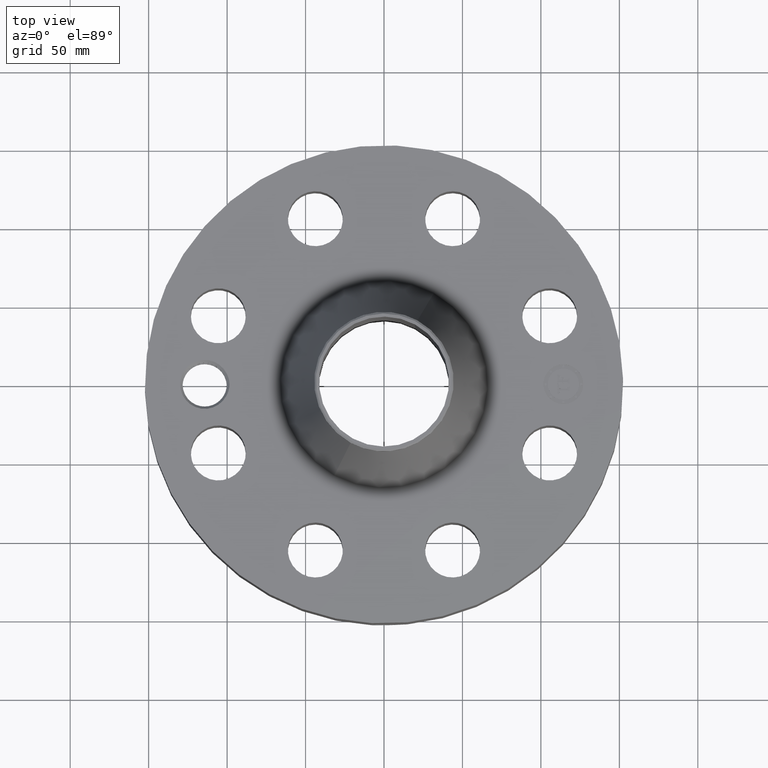
[diagram: clean part render]
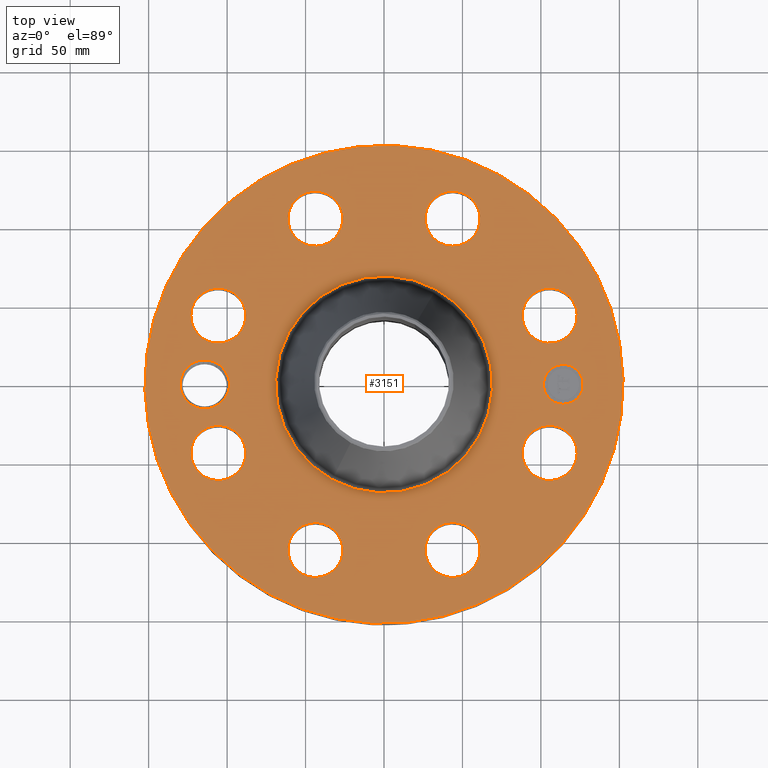
[diagram: same view with one face highlighted and labeled with its STEP entity id]
A machine part, top view. The second image highlights one B-rep face of the part: STEP entity #3151.
In plain terms, the highlighted planar face has unit normal (0, 0, -1).
Its self-contained STEP definition (entity closure, byte-faithful):
#2190=AXIS2_PLACEMENT_3D('Circle Axis2P3D',#2188,#2189,$) ;
#2216=AXIS2_PLACEMENT_3D('Circle Axis2P3D',#2214,#2215,$) ;
#2914=AXIS2_PLACEMENT_3D('Plane Axis2P3D',#2911,#2912,#2913) ;
#2918=AXIS2_PLACEMENT_3D('Circle Axis2P3D',#2916,#2917,$) ;
#2927=AXIS2_PLACEMENT_3D('Circle Axis2P3D',#2925,#2926,$) ;
#2961=AXIS2_PLACEMENT_3D('Circle Axis2P3D',#2959,#2960,$) ;
#2968=AXIS2_PLACEMENT_3D('Circle Axis2P3D',#2966,#2967,$) ;
#2975=AXIS2_PLACEMENT_3D('Circle Axis2P3D',#2973,#2974,$) ;
#2987=AXIS2_PLACEMENT_3D('Circle Axis2P3D',#2985,#2986,$) ;
#2996=AXIS2_PLACEMENT_3D('Circle Axis2P3D',#2994,#2995,$) ;
#3009=AXIS2_PLACEMENT_3D('Circle Axis2P3D',#3007,#3008,$) ;
#3018=AXIS2_PLACEMENT_3D('Circle Axis2P3D',#3016,#3017,$) ;
#3027=AXIS2_PLACEMENT_3D('Circle Axis2P3D',#3025,#3026,$) ;
#3036=AXIS2_PLACEMENT_3D('Circle Axis2P3D',#3034,#3035,$) ;
#3045=AXIS2_PLACEMENT_3D('Circle Axis2P3D',#3043,#3044,$) ;
#3054=AXIS2_PLACEMENT_3D('Circle Axis2P3D',#3052,#3053,$) ;
#3063=AXIS2_PLACEMENT_3D('Circle Axis2P3D',#3061,#3062,$) ;
#3072=AXIS2_PLACEMENT_3D('Circle Axis2P3D',#3070,#3071,$) ;
#3081=AXIS2_PLACEMENT_3D('Circle Axis2P3D',#3079,#3080,$) ;
#3090=AXIS2_PLACEMENT_3D('Circle Axis2P3D',#3088,#3089,$) ;
#3099=AXIS2_PLACEMENT_3D('Circle Axis2P3D',#3097,#3098,$) ;
#3108=AXIS2_PLACEMENT_3D('Circle Axis2P3D',#3106,#3107,$) ;
#3117=AXIS2_PLACEMENT_3D('Circle Axis2P3D',#3115,#3116,$) ;
#3126=AXIS2_PLACEMENT_3D('Circle Axis2P3D',#3124,#3125,$) ;
#3135=AXIS2_PLACEMENT_3D('Circle Axis2P3D',#3133,#3134,$) ;
#3144=AXIS2_PLACEMENT_3D('Circle Axis2P3D',#3142,#3143,$) ;
#2188=CARTESIAN_POINT('Axis2P3D Location',(0.,0.,2.99500000001)) ;
#2192=CARTESIAN_POINT('Vertex',(-1.30409489055,-2.38712968511,2.99500000001)) ;
#2194=CARTESIAN_POINT('Vertex',(1.30409489055,2.38712968511,2.99500000001)) ;
#2214=CARTESIAN_POINT('Axis2P3D Location',(0.,0.,2.99500000001)) ;
#2911=CARTESIAN_POINT('Axis2P3D Location',(0.,6.00000000002,2.99500000001)) ;
#2916=CARTESIAN_POINT('Axis2P3D Location',(0.,0.,2.99500000001)) ;
#2920=CARTESIAN_POINT('Vertex',(2.87655323164,5.26549537136,2.99500000001)) ;
#2922=CARTESIAN_POINT('Vertex',(-2.87655323164,-5.26549537136,2.99500000001)) ;
#2925=CARTESIAN_POINT('Axis2P3D Location',(0.,0.,2.99500000001)) ;
#2935=CARTESIAN_POINT('Control Point',(-3.87500000002,-1.1189649382E-015,2.99500000001)) ;
#2936=CARTESIAN_POINT('Control Point',(-3.87705142233,0.0564511992898,2.99500000001)) ;
#2937=CARTESIAN_POINT('Control Point',(-3.88548073755,0.112561680425,2.99500000001)) ;
#2938=CARTESIAN_POINT('Control Point',(-3.90023974767,0.167363712715,2.99500000001)) ;
#2939=CARTESIAN_POINT('Control Point',(-3.92105024981,0.219899046361,2.99500000001)) ;
#2940=CARTESIAN_POINT('Control Point',(-3.94744118531,0.269322940528,2.99500000001)) ;
#2941=CARTESIAN_POINT('Vertex',(-3.87500000002,-2.23792987641E-015,2.99500000001)) ;
#2943=CARTESIAN_POINT('Vertex',(-3.94744118531,0.269322940528,2.99500000001)) ;
#2947=CARTESIAN_POINT('Control Point',(-3.87500000002,0.,2.99500000001)) ;
#2948=CARTESIAN_POINT('Control Point',(-3.87686305278,-0.0512676314886,2.99500000001)) ;
#2949=CARTESIAN_POINT('Control Point',(-3.88398649713,-0.102254244847,2.99500000001)) ;
#2950=CARTESIAN_POINT('Control Point',(-3.89632551094,-0.152216993151,2.99500000001)) ;
#2951=CARTESIAN_POINT('Control Point',(-3.91547869889,-0.205418612382,2.99500000001)) ;
#2952=CARTESIAN_POINT('Control Point',(-3.94033933886,-0.255718032549,2.99500000001)) ;
#2953=CARTESIAN_POINT('Control Point',(-3.94271616362,-0.260400364357,2.99500000001)) ;
#2954=CARTESIAN_POINT('Control Point',(-3.94514225931,-0.265055859827,2.99500000001)) ;
#2955=CARTESIAN_POINT('Control Point',(-3.94761723184,-0.269683828635,2.99500000001)) ;
#2956=CARTESIAN_POINT('Vertex',(-3.94761723184,-0.269683828635,2.99500000001)) ;
#2959=CARTESIAN_POINT('Axis2P3D Location',(-4.50000000002,1.1189649382E-015,2.99500000001)) ;
#2963=CARTESIAN_POINT('Vertex',(-3.96054999922,-0.294702878581,2.99500000001)) ;
#2966=CARTESIAN_POINT('Axis2P3D Location',(-4.50000000002,1.1189649382E-015,2.99500000001)) ;
#2970=CARTESIAN_POINT('Vertex',(-5.03945000081,0.294702878581,2.99500000001)) ;
#2973=CARTESIAN_POINT('Axis2P3D Location',(-4.50000000002,1.1189649382E-015,2.99500000001)) ;
#2985=CARTESIAN_POINT('Axis2P3D Location',(4.15745789632,-1.72207544565,2.99500000001)) ;
#2989=CARTESIAN_POINT('Vertex',(3.55192592861,-1.39127182401,2.99500000001)) ;
#2991=CARTESIAN_POINT('Vertex',(4.76298986402,-2.05287906729,2.99500000001)) ;
#2994=CARTESIAN_POINT('Axis2P3D Location',(4.15745789632,-1.72207544565,2.99500000001)) ;
#3007=CARTESIAN_POINT('Axis2P3D Location',(1.72207544565,-4.15745789632,2.99500000001)) ;
#3011=CARTESIAN_POINT('Vertex',(1.91633772214,-4.81954714101,2.99500000001)) ;
#3013=CARTESIAN_POINT('Vertex',(1.52781316916,-3.49536865163,2.99500000001)) ;
#3016=CARTESIAN_POINT('Axis2P3D Location',(1.72207544565,-4.15745789632,2.99500000001)) ;
#3025=CARTESIAN_POINT('Axis2P3D Location',(-1.72207544565,-4.15745789632,2.99500000001)) ;
#3029=CARTESIAN_POINT('Vertex',(-2.05287906729,-4.76298986402,2.99500000001)) ;
#3031=CARTESIAN_POINT('Vertex',(-1.39127182401,-3.55192592861,2.99500000001)) ;
#3034=CARTESIAN_POINT('Axis2P3D Location',(-1.72207544565,-4.15745789632,2.99500000001)) ;
#3043=CARTESIAN_POINT('Axis2P3D Location',(-4.15745789632,-1.72207544565,2.99500000001)) ;
#3047=CARTESIAN_POINT('Vertex',(-4.81954714101,-1.91633772214,2.99500000001)) ;
#3049=CARTESIAN_POINT('Vertex',(-3.49536865163,-1.52781316916,2.99500000001)) ;
#3052=CARTESIAN_POINT('Axis2P3D Location',(-4.15745789632,-1.72207544565,2.99500000001)) ;
#3061=CARTESIAN_POINT('Axis2P3D Location',(-4.15745789632,1.72207544565,2.99500000001)) ;
#3065=CARTESIAN_POINT('Vertex',(-4.76298986402,2.05287906729,2.99500000001)) ;
#3067=CARTESIAN_POINT('Vertex',(-3.55192592861,1.39127182401,2.99500000001)) ;
#3070=CARTESIAN_POINT('Axis2P3D Location',(-4.15745789632,1.72207544565,2.99500000001)) ;
#3079=CARTESIAN_POINT('Axis2P3D Location',(-1.72207544565,4.15745789632,2.99500000001)) ;
#3083=CARTESIAN_POINT('Vertex',(-1.91633772214,4.81954714101,2.99500000001)) ;
#3085=CARTESIAN_POINT('Vertex',(-1.52781316916,3.49536865163,2.99500000001)) ;
#3088=CARTESIAN_POINT('Axis2P3D Location',(-1.72207544565,4.15745789632,2.99500000001)) ;
#3097=CARTESIAN_POINT('Axis2P3D Location',(1.72207544565,4.15745789632,2.99500000001)) ;
#3101=CARTESIAN_POINT('Vertex',(2.05287906729,4.76298986402,2.99500000001)) ;
#3103=CARTESIAN_POINT('Vertex',(1.39127182401,3.55192592861,2.99500000001)) ;
#3106=CARTESIAN_POINT('Axis2P3D Location',(1.72207544565,4.15745789632,2.99500000001)) ;
#3115=CARTESIAN_POINT('Axis2P3D Location',(4.15745789632,1.72207544565,2.99500000001)) ;
#3119=CARTESIAN_POINT('Vertex',(4.81954714101,1.91633772214,2.99500000001)) ;
#3121=CARTESIAN_POINT('Vertex',(3.49536865163,1.52781316916,2.99500000001)) ;
#3124=CARTESIAN_POINT('Axis2P3D Location',(4.15745789632,1.72207544565,2.99500000001)) ;
#3133=CARTESIAN_POINT('Axis2P3D Location',(4.50000000002,-1.00706844438E-014,2.99500000001)) ;
#3137=CARTESIAN_POINT('Vertex',(4.50000000002,0.499999995002,2.99500000001)) ;
#3139=CARTESIAN_POINT('Vertex',(4.50000000002,-0.499999995002,2.99500000001)) ;
#3142=CARTESIAN_POINT('Axis2P3D Location',(4.50000000002,-1.00706844438E-014,2.99500000001)) ;
#2189=DIRECTION('Axis2P3D Direction',(0.,0.,-0.0393700787402)) ;
#2215=DIRECTION('Axis2P3D Direction',(0.,0.,-0.0393700787402)) ;
#2912=DIRECTION('Axis2P3D Direction',(0.,0.,-0.0393700787402)) ;
#2913=DIRECTION('Axis2P3D XDirection',(0.0393700787402,0.,0.)) ;
#2917=DIRECTION('Axis2P3D Direction',(0.,0.,-0.0393700787402)) ;
#2926=DIRECTION('Axis2P3D Direction',(0.,0.,-0.0393700787402)) ;
#2960=DIRECTION('Axis2P3D Direction',(0.,0.,-0.0393700787402)) ;
#2967=DIRECTION('Axis2P3D Direction',(0.,0.,-0.0393700787402)) ;
#2974=DIRECTION('Axis2P3D Direction',(0.,0.,-0.0393700787402)) ;
#2986=DIRECTION('Axis2P3D Direction',(0.,0.,-0.0393700787402)) ;
#2995=DIRECTION('Axis2P3D Direction',(0.,0.,-0.0393700787402)) ;
#3008=DIRECTION('Axis2P3D Direction',(0.,0.,-0.0393700787402)) ;
#3017=DIRECTION('Axis2P3D Direction',(0.,0.,-0.0393700787402)) ;
#3026=DIRECTION('Axis2P3D Direction',(0.,0.,-0.0393700787402)) ;
#3035=DIRECTION('Axis2P3D Direction',(0.,0.,-0.0393700787402)) ;
#3044=DIRECTION('Axis2P3D Direction',(0.,0.,-0.0393700787402)) ;
#3053=DIRECTION('Axis2P3D Direction',(0.,0.,-0.0393700787402)) ;
#3062=DIRECTION('Axis2P3D Direction',(0.,0.,-0.0393700787402)) ;
#3071=DIRECTION('Axis2P3D Direction',(0.,0.,-0.0393700787402)) ;
#3080=DIRECTION('Axis2P3D Direction',(0.,0.,-0.0393700787402)) ;
#3089=DIRECTION('Axis2P3D Direction',(0.,0.,-0.0393700787402)) ;
#3098=DIRECTION('Axis2P3D Direction',(0.,0.,-0.0393700787402)) ;
#3107=DIRECTION('Axis2P3D Direction',(0.,0.,-0.0393700787402)) ;
#3116=DIRECTION('Axis2P3D Direction',(0.,0.,-0.0393700787402)) ;
#3125=DIRECTION('Axis2P3D Direction',(0.,0.,-0.0393700787402)) ;
#3134=DIRECTION('Axis2P3D Direction',(0.,0.,-0.0393700787402)) ;
#3143=DIRECTION('Axis2P3D Direction',(0.,0.,-0.0393700787402)) ;
#2931=ORIENTED_EDGE('',*,*,#2924,.F.) ;
#2932=ORIENTED_EDGE('',*,*,#2929,.F.) ;
#2979=ORIENTED_EDGE('',*,*,#2945,.F.) ;
#2980=ORIENTED_EDGE('',*,*,#2958,.T.) ;
#2981=ORIENTED_EDGE('',*,*,#2965,.T.) ;
#2982=ORIENTED_EDGE('',*,*,#2972,.T.) ;
#2983=ORIENTED_EDGE('',*,*,#2977,.T.) ;
#3000=ORIENTED_EDGE('',*,*,#2993,.T.) ;
#3001=ORIENTED_EDGE('',*,*,#2998,.T.) ;
#3004=ORIENTED_EDGE('',*,*,#2196,.T.) ;
#3005=ORIENTED_EDGE('',*,*,#2218,.T.) ;
#3022=ORIENTED_EDGE('',*,*,#3015,.T.) ;
#3023=ORIENTED_EDGE('',*,*,#3020,.T.) ;
#3040=ORIENTED_EDGE('',*,*,#3033,.T.) ;
#3041=ORIENTED_EDGE('',*,*,#3038,.T.) ;
#3058=ORIENTED_EDGE('',*,*,#3051,.T.) ;
#3059=ORIENTED_EDGE('',*,*,#3056,.T.) ;
#3076=ORIENTED_EDGE('',*,*,#3069,.T.) ;
#3077=ORIENTED_EDGE('',*,*,#3074,.T.) ;
#3094=ORIENTED_EDGE('',*,*,#3087,.T.) ;
#3095=ORIENTED_EDGE('',*,*,#3092,.T.) ;
#3112=ORIENTED_EDGE('',*,*,#3105,.T.) ;
#3113=ORIENTED_EDGE('',*,*,#3110,.T.) ;
#3130=ORIENTED_EDGE('',*,*,#3123,.T.) ;
#3131=ORIENTED_EDGE('',*,*,#3128,.T.) ;
#3148=ORIENTED_EDGE('',*,*,#3141,.T.) ;
#3149=ORIENTED_EDGE('',*,*,#3146,.T.) ;
#2984=FACE_BOUND('',#2978,.T.) ;
#3002=FACE_BOUND('',#2999,.T.) ;
#3006=FACE_BOUND('',#3003,.T.) ;
#3024=FACE_BOUND('',#3021,.T.) ;
#3042=FACE_BOUND('',#3039,.T.) ;
#3060=FACE_BOUND('',#3057,.T.) ;
#3078=FACE_BOUND('',#3075,.T.) ;
#3096=FACE_BOUND('',#3093,.T.) ;
#3114=FACE_BOUND('',#3111,.T.) ;
#3132=FACE_BOUND('',#3129,.T.) ;
#3150=FACE_BOUND('',#3147,.T.) ;
#3151=ADVANCED_FACE('PartBody',(#2933,#2984,#3002,#3006,#3024,#3042,#3060,#3078,#3096,#3114,#3132,#3150),#2915,.F.) ;
#2934=B_SPLINE_CURVE_WITH_KNOTS('',5,(#2935,#2936,#2937,#2938,#2939,#2940),.UNSPECIFIED.,.F.,.U.,(6,6),(0.,9.8697104643),.UNSPECIFIED.) ;
#2946=B_SPLINE_CURVE_WITH_KNOTS('',5,(#2947,#2948,#2949,#2950,#2951,#2952,#2953,#2954,#2955),.UNSPECIFIED.,.F.,.U.,(6,3,6),(0.,8.96343541589,9.8891467733),.UNSPECIFIED.) ;
#2191=CIRCLE('generated circle',#2190,2.72011977992) ;
#2217=CIRCLE('generated circle',#2216,2.72011977992) ;
#2919=CIRCLE('generated circle',#2918,6.00000000002) ;
#2928=CIRCLE('generated circle',#2927,6.00000000002) ;
#2962=CIRCLE('generated circle',#2961,0.614700000002) ;
#2969=CIRCLE('generated circle',#2968,0.614700000002) ;
#2976=CIRCLE('generated circle',#2975,0.614700000002) ;
#2988=CIRCLE('generated circle',#2987,0.690000000003) ;
#2997=CIRCLE('generated circle',#2996,0.690000000003) ;
#3010=CIRCLE('generated circle',#3009,0.690000000003) ;
#3019=CIRCLE('generated circle',#3018,0.690000000003) ;
#3028=CIRCLE('generated circle',#3027,0.690000000003) ;
#3037=CIRCLE('generated circle',#3036,0.690000000003) ;
#3046=CIRCLE('generated circle',#3045,0.690000000003) ;
#3055=CIRCLE('generated circle',#3054,0.690000000003) ;
#3064=CIRCLE('generated circle',#3063,0.690000000003) ;
#3073=CIRCLE('generated circle',#3072,0.690000000003) ;
#3082=CIRCLE('generated circle',#3081,0.690000000003) ;
#3091=CIRCLE('generated circle',#3090,0.690000000003) ;
#3100=CIRCLE('generated circle',#3099,0.690000000003) ;
#3109=CIRCLE('generated circle',#3108,0.690000000003) ;
#3118=CIRCLE('generated circle',#3117,0.690000000003) ;
#3127=CIRCLE('generated circle',#3126,0.690000000003) ;
#3136=CIRCLE('generated circle',#3135,0.499999995002) ;
#3145=CIRCLE('generated circle',#3144,0.499999995002) ;
#2196=EDGE_CURVE('',#2193,#2195,#2191,.T.) ;
#2218=EDGE_CURVE('',#2195,#2193,#2217,.T.) ;
#2924=EDGE_CURVE('',#2921,#2923,#2919,.T.) ;
#2929=EDGE_CURVE('',#2923,#2921,#2928,.T.) ;
#2945=EDGE_CURVE('',#2942,#2944,#2934,.T.) ;
#2958=EDGE_CURVE('',#2942,#2957,#2946,.T.) ;
#2965=EDGE_CURVE('',#2957,#2964,#2962,.T.) ;
#2972=EDGE_CURVE('',#2964,#2971,#2969,.T.) ;
#2977=EDGE_CURVE('',#2971,#2944,#2976,.T.) ;
#2993=EDGE_CURVE('',#2990,#2992,#2988,.T.) ;
#2998=EDGE_CURVE('',#2992,#2990,#2997,.T.) ;
#3015=EDGE_CURVE('',#3012,#3014,#3010,.T.) ;
#3020=EDGE_CURVE('',#3014,#3012,#3019,.T.) ;
#3033=EDGE_CURVE('',#3030,#3032,#3028,.T.) ;
#3038=EDGE_CURVE('',#3032,#3030,#3037,.T.) ;
#3051=EDGE_CURVE('',#3048,#3050,#3046,.T.) ;
#3056=EDGE_CURVE('',#3050,#3048,#3055,.T.) ;
#3069=EDGE_CURVE('',#3066,#3068,#3064,.T.) ;
#3074=EDGE_CURVE('',#3068,#3066,#3073,.T.) ;
#3087=EDGE_CURVE('',#3084,#3086,#3082,.T.) ;
#3092=EDGE_CURVE('',#3086,#3084,#3091,.T.) ;
#3105=EDGE_CURVE('',#3102,#3104,#3100,.T.) ;
#3110=EDGE_CURVE('',#3104,#3102,#3109,.T.) ;
#3123=EDGE_CURVE('',#3120,#3122,#3118,.T.) ;
#3128=EDGE_CURVE('',#3122,#3120,#3127,.T.) ;
#3141=EDGE_CURVE('',#3138,#3140,#3136,.T.) ;
#3146=EDGE_CURVE('',#3140,#3138,#3145,.T.) ;
#2930=EDGE_LOOP('',(#2931,#2932)) ;
#2978=EDGE_LOOP('',(#2979,#2980,#2981,#2982,#2983)) ;
#2999=EDGE_LOOP('',(#3000,#3001)) ;
#3003=EDGE_LOOP('',(#3004,#3005)) ;
#3021=EDGE_LOOP('',(#3022,#3023)) ;
#3039=EDGE_LOOP('',(#3040,#3041)) ;
#3057=EDGE_LOOP('',(#3058,#3059)) ;
#3075=EDGE_LOOP('',(#3076,#3077)) ;
#3093=EDGE_LOOP('',(#3094,#3095)) ;
#3111=EDGE_LOOP('',(#3112,#3113)) ;
#3129=EDGE_LOOP('',(#3130,#3131)) ;
#3147=EDGE_LOOP('',(#3148,#3149)) ;
#2933=FACE_OUTER_BOUND('',#2930,.T.) ;
#2915=PLANE('',#2914) ;
#2193=VERTEX_POINT('',#2192) ;
#2195=VERTEX_POINT('',#2194) ;
#2921=VERTEX_POINT('',#2920) ;
#2923=VERTEX_POINT('',#2922) ;
#2942=VERTEX_POINT('',#2941) ;
#2944=VERTEX_POINT('',#2943) ;
#2957=VERTEX_POINT('',#2956) ;
#2964=VERTEX_POINT('',#2963) ;
#2971=VERTEX_POINT('',#2970) ;
#2990=VERTEX_POINT('',#2989) ;
#2992=VERTEX_POINT('',#2991) ;
#3012=VERTEX_POINT('',#3011) ;
#3014=VERTEX_POINT('',#3013) ;
#3030=VERTEX_POINT('',#3029) ;
#3032=VERTEX_POINT('',#3031) ;
#3048=VERTEX_POINT('',#3047) ;
#3050=VERTEX_POINT('',#3049) ;
#3066=VERTEX_POINT('',#3065) ;
#3068=VERTEX_POINT('',#3067) ;
#3084=VERTEX_POINT('',#3083) ;
#3086=VERTEX_POINT('',#3085) ;
#3102=VERTEX_POINT('',#3101) ;
#3104=VERTEX_POINT('',#3103) ;
#3120=VERTEX_POINT('',#3119) ;
#3122=VERTEX_POINT('',#3121) ;
#3138=VERTEX_POINT('',#3137) ;
#3140=VERTEX_POINT('',#3139) ;